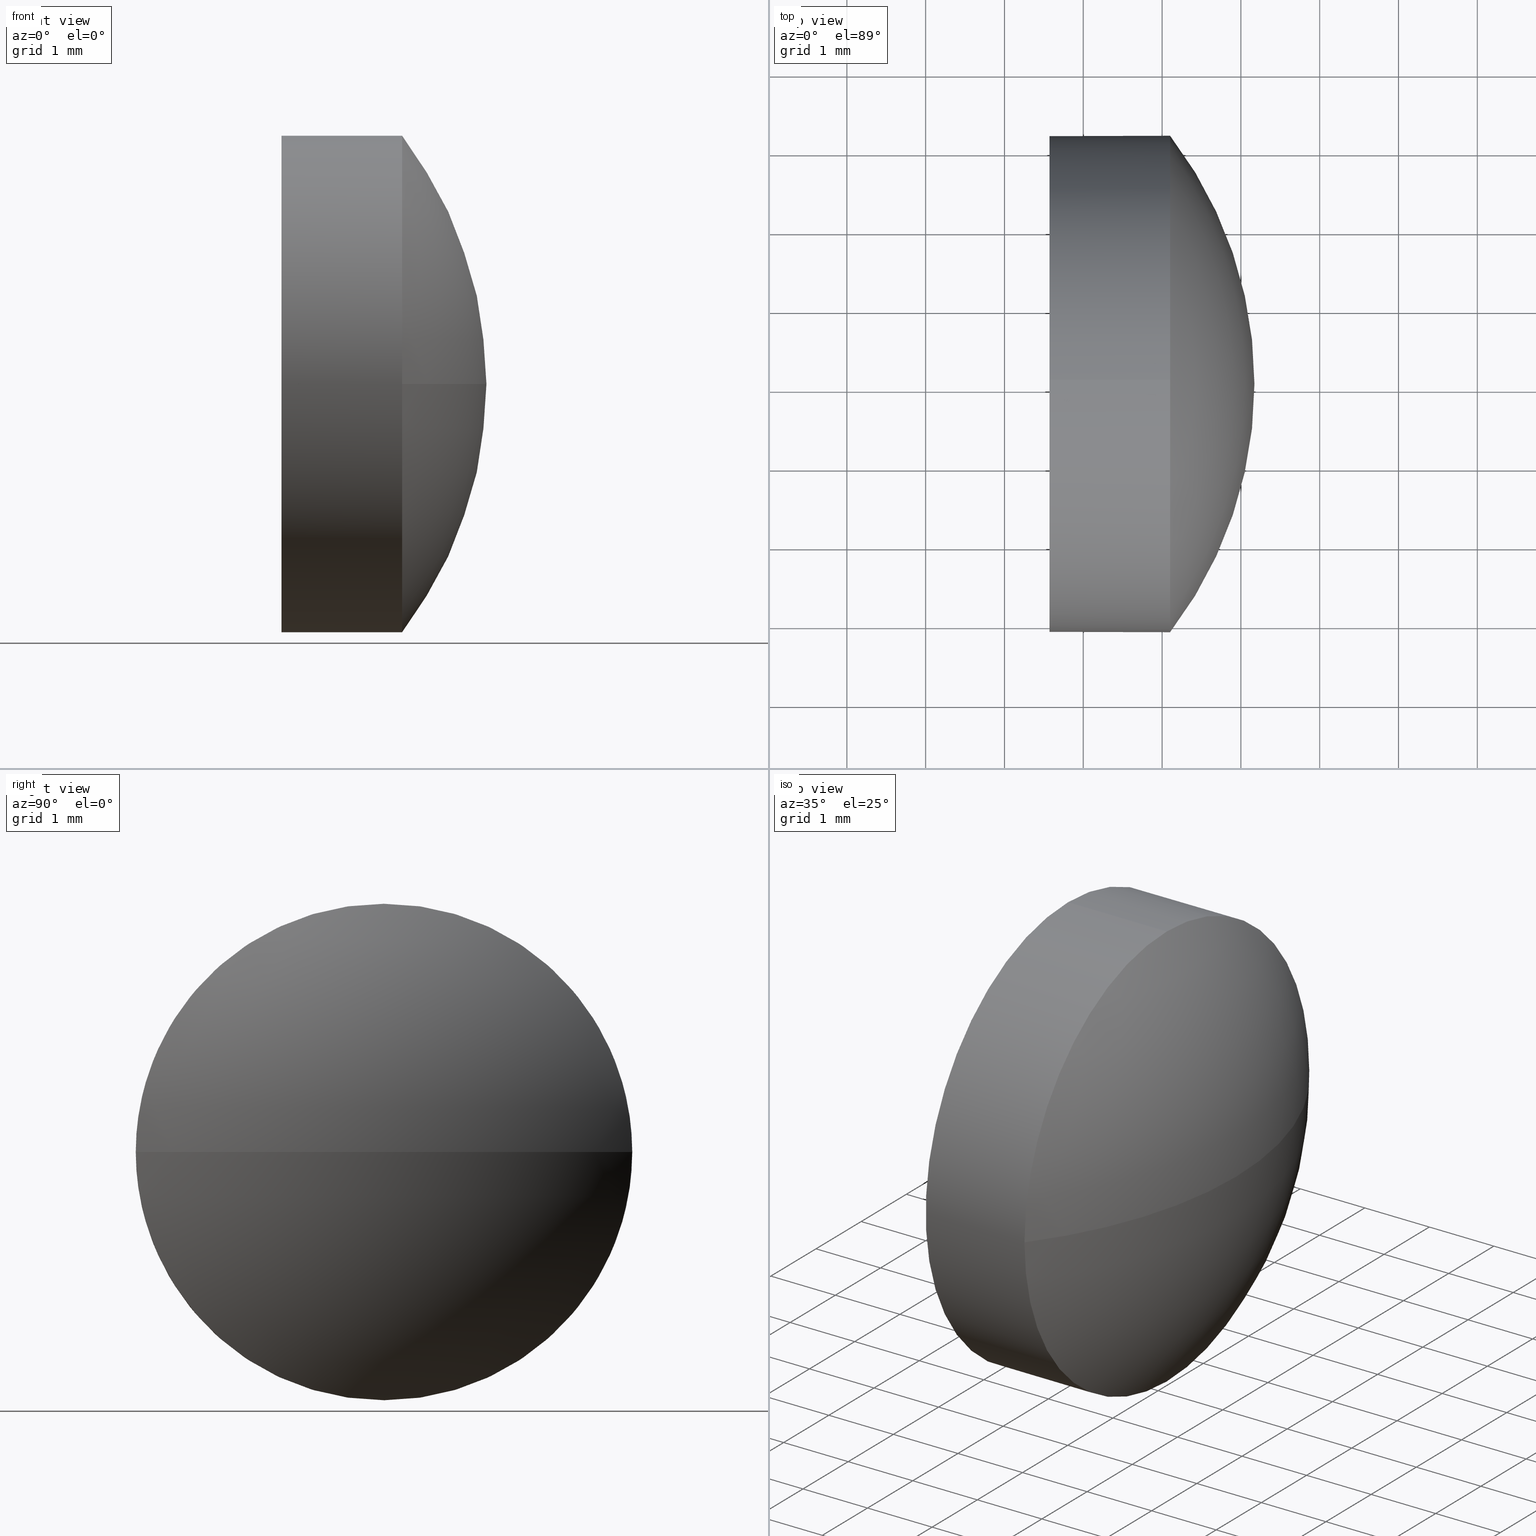
[diagram: canonical four-view strip — front | top / right | iso, engineering-drawing reading convention]
A machine part, canonical four-view strip (front | top / right | iso — engineering-drawing reading convention). The complete STEP part file that produces these views, byte-faithful:
ISO-10303-21;
HEADER;
FILE_DESCRIPTION (( 'STEP AP214' ),
    '1' );
FILE_NAME ('100093.STEP',
    '2019-05-13T05:28:27',
    ( '' ),
    ( '' ),
    'SwSTEP 2.0',
    'SolidWorks 2016',
    '' );
FILE_SCHEMA (( 'AUTOMOTIVE_DESIGN' ));
ENDSEC;

DATA;
#1 = EDGE_LOOP ( 'NONE', ( #40, #35, #152, #12 ) ) ;
#2 = DIRECTION ( 'NONE',  ( 1.000000000000000000, 0.0000000000000000000, 0.0000000000000000000 ) ) ;
#3 = DIRECTION ( 'NONE',  ( -1.000000000000000000, -0.0000000000000000000, -0.0000000000000000000 ) ) ;
#4 = FILL_AREA_STYLE_COLOUR ( '', #101 ) ;
#5 = ORIENTED_EDGE ( 'NONE', *, *, #133, .T. ) ;
#6 =( LENGTH_UNIT ( ) NAMED_UNIT ( * ) SI_UNIT ( .MILLI., .METRE. ) );
#7 =( GEOMETRIC_REPRESENTATION_CONTEXT ( 3 ) GLOBAL_UNCERTAINTY_ASSIGNED_CONTEXT ( ( #105 ) ) GLOBAL_UNIT_ASSIGNED_CONTEXT ( ( #162, #68, #172 ) ) REPRESENTATION_CONTEXT ( 'NONE', 'WORKASPACE' ) );
#8 = FACE_OUTER_BOUND ( 'NONE', #154, .T. ) ;
#9 = PRODUCT_DEFINITION ( 'δ֪', '', #45, #108 ) ;
#10 = CARTESIAN_POINT ( 'NONE',  ( 353.1020176784387000, 25.04791477200547300, 0.0000000000000000000 ) ) ;
#11 = CARTESIAN_POINT ( 'NONE',  ( 351.5720176784386700, 25.04791477200547300, 0.0000000000000000000 ) ) ;
#12 = ORIENTED_EDGE ( 'NONE', *, *, #72, .F. ) ;
#13 = CARTESIAN_POINT ( 'NONE',  ( 349.0003662362582900, 25.04791477200545200, 0.0000000000000000000 ) ) ;
#14 = PRODUCT_CONTEXT ( 'NONE', #74, 'mechanical' ) ;
#15 = DIRECTION ( 'NONE',  ( 1.000000000000000000, 0.0000000000000000000, 0.0000000000000000000 ) ) ;
#16 = CIRCLE ( 'NONE', #55, 3.149999999999996400 ) ;
#17 = DIRECTION ( 'NONE',  ( -1.000000000000000000, -0.0000000000000000000, -0.0000000000000000000 ) ) ;
#18 = PRESENTATION_LAYER_ASSIGNMENT (  '', '', ( #99 ) ) ;
#19 = ADVANCED_BREP_SHAPE_REPRESENTATION ( '100093', ( #142, #92 ), #171 ) ;
#20 =( LENGTH_UNIT ( ) NAMED_UNIT ( * ) SI_UNIT ( .MILLI., .METRE. ) );
#21 = SURFACE_STYLE_FILL_AREA ( #31 ) ;
#22 = CARTESIAN_POINT ( 'NONE',  ( 353.1020176784387000, 25.04791477200547300, 0.0000000000000000000 ) ) ;
#23 = UNCERTAINTY_MEASURE_WITH_UNIT (LENGTH_MEASURE( 1.000000000000000100E-005 ), #6, 'distance_accuracy_value', 'NONE');
#24 = VERTEX_POINT ( 'NONE', #51 ) ;
#25 = CARTESIAN_POINT ( 'NONE',  ( 354.1720240510349500, 25.04791477200545200, 0.0000000000000000000 ) ) ;
#26 = AXIS2_PLACEMENT_3D ( 'NONE', #169, #183, #146 ) ;
#27 = DIRECTION ( 'NONE',  ( 0.0000000000000000000, 0.0000000000000000000, 1.000000000000000000 ) ) ;
#28 = CIRCLE ( 'NONE', #117, 3.149999999999996400 ) ;
#29 = VERTEX_POINT ( 'NONE', #132 ) ;
#30 =( NAMED_UNIT ( * ) PLANE_ANGLE_UNIT ( ) SI_UNIT ( $, .RADIAN. ) );
#31 = FILL_AREA_STYLE ('',( #70 ) ) ;
#32 = VECTOR ( 'NONE', #131, 1000.000000000000000 ) ;
#33 = CARTESIAN_POINT ( 'NONE',  ( 0.0000000000000000000, 0.0000000000000000000, 0.0000000000000000000 ) ) ;
#34 = ORIENTED_EDGE ( 'NONE', *, *, #41, .T. ) ;
#35 = ORIENTED_EDGE ( 'NONE', *, *, #67, .T. ) ;
#36 = PRODUCT_RELATED_PRODUCT_CATEGORY ( 'part', '', ( #79 ) ) ;
#37 = ORIENTED_EDGE ( 'NONE', *, *, #168, .F. ) ;
#38 = CARTESIAN_POINT ( 'NONE',  ( 353.1020176784387000, 21.89791477200547100, -3.857637417314142000E-016 ) ) ;
#39 = DIRECTION ( 'NONE',  ( 0.0000000000000000000, 0.0000000000000000000, 1.000000000000000000 ) ) ;
#40 = ORIENTED_EDGE ( 'NONE', *, *, #161, .F. ) ;
#41 = EDGE_CURVE ( 'NONE', #91, #60, #64, .T. ) ;
#42 = ORIENTED_EDGE ( 'NONE', *, *, #125, .T. ) ;
#43 = FACE_OUTER_BOUND ( 'NONE', #175, .T. ) ;
#44 = APPLICATION_CONTEXT ( 'automotive_design' ) ;
#45 = PRODUCT_DEFINITION_FORMATION_WITH_SPECIFIED_SOURCE ( '�κ�', '', #79, .NOT_KNOWN. ) ;
#46 = FACE_OUTER_BOUND ( 'NONE', #139, .T. ) ;
#47 = ORIENTED_EDGE ( 'NONE', *, *, #48, .F. ) ;
#48 = EDGE_CURVE ( 'NONE', #170, #24, #16, .T. ) ;
#49 = CARTESIAN_POINT ( 'NONE',  ( 350.7103895088541800, 25.04791477200547300, -3.149999999999996400 ) ) ;
#50 = ORIENTED_EDGE ( 'NONE', *, *, #161, .T. ) ;
#51 = CARTESIAN_POINT ( 'NONE',  ( 351.5720176784386700, 25.04791477200547300, -3.149999999999996400 ) ) ;
#52 = DIRECTION ( 'NONE',  ( 0.0000000000000000000, 0.0000000000000000000, 1.000000000000000000 ) ) ;
#53 = ADVANCED_FACE ( 'NONE', ( #46 ), #78, .T. ) ;
#54 = PRESENTATION_STYLE_ASSIGNMENT (( #163 ) ) ;
#55 = AXIS2_PLACEMENT_3D ( 'NONE', #11, #80, #27 ) ;
#56 = EDGE_LOOP ( 'NONE', ( #182, #42, #34, #95, #76 ) ) ;
#57 = PLANE ( 'NONE',  #94 ) ;
#58 = DIRECTION ( 'NONE',  ( 0.0000000000000000000, 0.0000000000000000000, -1.000000000000000000 ) ) ;
#59 = DIRECTION ( 'NONE',  ( -0.0000000000000000000, 0.0000000000000000000, 1.000000000000000000 ) ) ;
#60 = VERTEX_POINT ( 'NONE', #65 ) ;
#61 = LINE ( 'NONE', #112, #81 ) ;
#62 = MECHANICAL_DESIGN_GEOMETRIC_PRESENTATION_REPRESENTATION (  '', ( #99 ), #143 ) ;
#63 = DIRECTION ( 'NONE',  ( -0.0000000000000000000, 0.0000000000000000000, -1.000000000000000000 ) ) ;
#64 = CIRCLE ( 'NONE', #111, 3.149999999999996400 ) ;
#65 = CARTESIAN_POINT ( 'NONE',  ( 353.1020176784387000, 25.04791477200547300, 3.149999999999996400 ) ) ;
#66 = ORIENTED_EDGE ( 'NONE', *, *, #67, .F. ) ;
#67 = EDGE_CURVE ( 'NONE', #128, #91, #167, .T. ) ;
#68 =( NAMED_UNIT ( * ) PLANE_ANGLE_UNIT ( ) SI_UNIT ( $, .RADIAN. ) );
#69 = ADVANCED_FACE ( 'NONE', ( #115 ), #73, .T. ) ;
#70 = FILL_AREA_STYLE_COLOUR ( '', #110 ) ;
#71 = DIRECTION ( 'NONE',  ( 0.0000000000000000000, 0.0000000000000000000, 1.000000000000000000 ) ) ;
#72 = EDGE_CURVE ( 'NONE', #29, #134, #123, .T. ) ;
#73 = SPHERICAL_SURFACE ( 'NONE', #26, 5.171657814776648500 ) ;
#74 = APPLICATION_CONTEXT ( 'automotive_design' ) ;
#75 = EDGE_CURVE ( 'NONE', #134, #24, #155, .T. ) ;
#76 = ORIENTED_EDGE ( 'NONE', *, *, #133, .F. ) ;
#77 = SHAPE_DEFINITION_REPRESENTATION ( #127, #19 ) ;
#78 = SPHERICAL_SURFACE ( 'NONE', #90, 5.171657814776648500 ) ;
#79 = PRODUCT ( '100093', '100093', '', ( #14 ) ) ;
#80 = DIRECTION ( 'NONE',  ( -1.000000000000000000, -0.0000000000000000000, -0.0000000000000000000 ) ) ;
#81 = VECTOR ( 'NONE', #3, 1000.000000000000000 ) ;
#82 = DIRECTION ( 'NONE',  ( -1.000000000000000000, -0.0000000000000000000, -0.0000000000000000000 ) ) ;
#83 = FACE_OUTER_BOUND ( 'NONE', #56, .T. ) ;
#84 = ORIENTED_EDGE ( 'NONE', *, *, #168, .T. ) ;
#85 = AXIS2_PLACEMENT_3D ( 'NONE', #144, #156, #114 ) ;
#86 = CARTESIAN_POINT ( 'NONE',  ( 350.7103895088541800, 25.04791477200547300, 0.0000000000000000000 ) ) ;
#87 = SURFACE_SIDE_STYLE ('',( #176 ) ) ;
#88 = DIRECTION ( 'NONE',  ( 0.0000000000000000000, 0.0000000000000000000, 1.000000000000000000 ) ) ;
#89 = DIRECTION ( 'NONE',  ( 1.000000000000000000, 0.0000000000000000000, 0.0000000000000000000 ) ) ;
#90 = AXIS2_PLACEMENT_3D ( 'NONE', #13, #63, #93 ) ;
#91 = VERTEX_POINT ( 'NONE', #38 ) ;
#92 = AXIS2_PLACEMENT_3D ( 'NONE', #33, #39, #15 ) ;
#93 = DIRECTION ( 'NONE',  ( 0.0000000000000000000, 1.000000000000000000, 0.0000000000000000000 ) ) ;
#94 = AXIS2_PLACEMENT_3D ( 'NONE', #140, #2, #58 ) ;
#95 = ORIENTED_EDGE ( 'NONE', *, *, #130, .T. ) ;
#96 = DIRECTION ( 'NONE',  ( 0.0000000000000000000, 0.0000000000000000000, 1.000000000000000000 ) ) ;
#97 = UNCERTAINTY_MEASURE_WITH_UNIT (LENGTH_MEASURE( 1.000000000000000100E-005 ), #20, 'distance_accuracy_value', 'NONE');
#98 = CYLINDRICAL_SURFACE ( 'NONE', #153, 3.149999999999996400 ) ;
#99 = STYLED_ITEM ( 'NONE', ( #113 ), #19 ) ;
#100 =( NAMED_UNIT ( * ) SI_UNIT ( $, .STERADIAN. ) SOLID_ANGLE_UNIT ( ) );
#101 = COLOUR_RGB ( '',1.000000000000000000, 1.000000000000000000, 1.000000000000000000 ) ;
#102 = CARTESIAN_POINT ( 'NONE',  ( 351.5720176784386700, 25.04791477200547300, 0.0000000000000000000 ) ) ;
#103 = CARTESIAN_POINT ( 'NONE',  ( 353.1020176784387000, 25.04791477200547300, 0.0000000000000000000 ) ) ;
#104 = AXIS2_PLACEMENT_3D ( 'NONE', #119, #137, #52 ) ;
#105 = UNCERTAINTY_MEASURE_WITH_UNIT (LENGTH_MEASURE( 1.000000000000000100E-005 ), #162, 'distance_accuracy_value', 'NONE');
#106 = FILL_AREA_STYLE ('',( #4 ) ) ;
#107 = CIRCLE ( 'NONE', #104, 3.149999999999996400 ) ;
#108 = PRODUCT_DEFINITION_CONTEXT ( 'detailed design', #44, 'design' ) ;
#109 = MECHANICAL_DESIGN_GEOMETRIC_PRESENTATION_REPRESENTATION (  '', ( #180 ), #7 ) ;
#110 = COLOUR_RGB ( '',1.000000000000000000, 1.000000000000000000, 1.000000000000000000 ) ;
#111 = AXIS2_PLACEMENT_3D ( 'NONE', #10, #82, #96 ) ;
#112 = CARTESIAN_POINT ( 'NONE',  ( 350.7103895088541800, 25.04791477200547300, 3.149999999999996400 ) ) ;
#113 = PRESENTATION_STYLE_ASSIGNMENT (( #120 ) ) ;
#114 = DIRECTION ( 'NONE',  ( 0.0000000000000000000, 1.000000000000000000, 1.224646799147353200E-016 ) ) ;
#115 = FACE_OUTER_BOUND ( 'NONE', #1, .T. ) ;
#116 = ORIENTED_EDGE ( 'NONE', *, *, #75, .T. ) ;
#117 = AXIS2_PLACEMENT_3D ( 'NONE', #102, #17, #164 ) ;
#118 = CYLINDRICAL_SURFACE ( 'NONE', #121, 3.149999999999996400 ) ;
#119 = CARTESIAN_POINT ( 'NONE',  ( 353.1020176784387000, 25.04791477200547300, 0.0000000000000000000 ) ) ;
#120 = SURFACE_STYLE_USAGE ( .BOTH. , #87 ) ;
#121 = AXIS2_PLACEMENT_3D ( 'NONE', #86, #124, #141 ) ;
#122 = SURFACE_SIDE_STYLE ('',( #21 ) ) ;
#123 = CIRCLE ( 'NONE', #159, 3.149999999999996400 ) ;
#124 = DIRECTION ( 'NONE',  ( -1.000000000000000000, -0.0000000000000000000, -0.0000000000000000000 ) ) ;
#125 = EDGE_CURVE ( 'NONE', #134, #91, #107, .T. ) ;
#126 = CIRCLE ( 'NONE', #151, 5.171657814776631700 ) ;
#127 = PRODUCT_DEFINITION_SHAPE ( 'NONE', 'NONE',  #9 ) ;
#128 = VERTEX_POINT ( 'NONE', #25 ) ;
#129 = DIRECTION ( 'NONE',  ( -1.000000000000000000, -0.0000000000000000000, -0.0000000000000000000 ) ) ;
#130 = EDGE_CURVE ( 'NONE', #60, #170, #61, .T. ) ;
#131 = DIRECTION ( 'NONE',  ( -1.000000000000000000, -0.0000000000000000000, -0.0000000000000000000 ) ) ;
#132 = CARTESIAN_POINT ( 'NONE',  ( 353.1020176784387000, 28.19791477200545800, 0.0000000000000000000 ) ) ;
#133 = EDGE_CURVE ( 'NONE', #24, #170, #28, .T. ) ;
#134 = VERTEX_POINT ( 'NONE', #177 ) ;
#135 = PRESENTATION_LAYER_ASSIGNMENT (  '', '', ( #180 ) ) ;
#136 = ADVANCED_FACE ( 'NONE', ( #8 ), #98, .T. ) ;
#137 = DIRECTION ( 'NONE',  ( -1.000000000000000000, -0.0000000000000000000, -0.0000000000000000000 ) ) ;
#138 =( NAMED_UNIT ( * ) SI_UNIT ( $, .STERADIAN. ) SOLID_ANGLE_UNIT ( ) );
#139 = EDGE_LOOP ( 'NONE', ( #66, #50, #37, #184 ) ) ;
#140 = CARTESIAN_POINT ( 'NONE',  ( 351.5720176784386700, 25.04791477200547300, 0.0000000000000000000 ) ) ;
#141 = DIRECTION ( 'NONE',  ( 0.0000000000000000000, 0.0000000000000000000, 1.000000000000000000 ) ) ;
#142 = MANIFOLD_SOLID_BREP ( '��ת1', #185 ) ;
#143 =( GEOMETRIC_REPRESENTATION_CONTEXT ( 3 ) GLOBAL_UNCERTAINTY_ASSIGNED_CONTEXT ( ( #97 ) ) GLOBAL_UNIT_ASSIGNED_CONTEXT ( ( #20, #30, #138 ) ) REPRESENTATION_CONTEXT ( 'NONE', 'WORKASPACE' ) );
#144 = CARTESIAN_POINT ( 'NONE',  ( 349.0003662362582900, 25.04791477200545200, 0.0000000000000000000 ) ) ;
#145 = DIRECTION ( 'NONE',  ( 0.0000000000000000000, 0.0000000000000000000, 1.000000000000000000 ) ) ;
#146 = DIRECTION ( 'NONE',  ( 0.0000000000000000000, 1.000000000000000000, 0.0000000000000000000 ) ) ;
#147 = CARTESIAN_POINT ( 'NONE',  ( 350.7103895088541800, 25.04791477200547300, 0.0000000000000000000 ) ) ;
#148 = APPLICATION_PROTOCOL_DEFINITION ( 'draft international standard', 'automotive_design', 1998, #74 ) ;
#149 = CIRCLE ( 'NONE', #186, 3.149999999999996400 ) ;
#150 = APPLICATION_PROTOCOL_DEFINITION ( 'draft international standard', 'automotive_design', 1998, #44 ) ;
#151 = AXIS2_PLACEMENT_3D ( 'NONE', #179, #59, #89 ) ;
#152 = ORIENTED_EDGE ( 'NONE', *, *, #125, .F. ) ;
#153 = AXIS2_PLACEMENT_3D ( 'NONE', #147, #158, #88 ) ;
#154 = EDGE_LOOP ( 'NONE', ( #181, #116, #47, #165, #84 ) ) ;
#155 = LINE ( 'NONE', #49, #32 ) ;
#156 = DIRECTION ( 'NONE',  ( 0.0000000000000000000, 1.224646799147353200E-016, -1.000000000000000000 ) ) ;
#157 = ORIENTED_EDGE ( 'NONE', *, *, #48, .T. ) ;
#158 = DIRECTION ( 'NONE',  ( -1.000000000000000000, -0.0000000000000000000, -0.0000000000000000000 ) ) ;
#159 = AXIS2_PLACEMENT_3D ( 'NONE', #22, #129, #145 ) ;
#160 = ADVANCED_FACE ( 'NONE', ( #83 ), #118, .T. ) ;
#161 = EDGE_CURVE ( 'NONE', #128, #29, #126, .T. ) ;
#162 =( LENGTH_UNIT ( ) NAMED_UNIT ( * ) SI_UNIT ( .MILLI., .METRE. ) );
#163 = SURFACE_STYLE_USAGE ( .BOTH. , #122 ) ;
#164 = DIRECTION ( 'NONE',  ( 0.0000000000000000000, 0.0000000000000000000, 1.000000000000000000 ) ) ;
#165 = ORIENTED_EDGE ( 'NONE', *, *, #130, .F. ) ;
#166 = DIRECTION ( 'NONE',  ( -1.000000000000000000, -0.0000000000000000000, -0.0000000000000000000 ) ) ;
#167 = CIRCLE ( 'NONE', #85, 5.171657814776648500 ) ;
#168 = EDGE_CURVE ( 'NONE', #60, #29, #149, .T. ) ;
#169 = CARTESIAN_POINT ( 'NONE',  ( 349.0003662362582900, 25.04791477200545200, 0.0000000000000000000 ) ) ;
#170 = VERTEX_POINT ( 'NONE', #178 ) ;
#171 =( GEOMETRIC_REPRESENTATION_CONTEXT ( 3 ) GLOBAL_UNCERTAINTY_ASSIGNED_CONTEXT ( ( #23 ) ) GLOBAL_UNIT_ASSIGNED_CONTEXT ( ( #6, #174, #100 ) ) REPRESENTATION_CONTEXT ( 'NONE', 'WORKASPACE' ) );
#172 =( NAMED_UNIT ( * ) SI_UNIT ( $, .STERADIAN. ) SOLID_ANGLE_UNIT ( ) );
#173 = ADVANCED_FACE ( 'NONE', ( #43 ), #57, .F. ) ;
#174 =( NAMED_UNIT ( * ) PLANE_ANGLE_UNIT ( ) SI_UNIT ( $, .RADIAN. ) );
#175 = EDGE_LOOP ( 'NONE', ( #157, #5 ) ) ;
#176 = SURFACE_STYLE_FILL_AREA ( #106 ) ;
#177 = CARTESIAN_POINT ( 'NONE',  ( 353.1020176784387000, 25.04791477200547300, -3.149999999999996400 ) ) ;
#178 = CARTESIAN_POINT ( 'NONE',  ( 351.5720176784386700, 25.04791477200547300, 3.149999999999996400 ) ) ;
#179 = CARTESIAN_POINT ( 'NONE',  ( 349.0003662362582900, 25.04791477200545200, 0.0000000000000000000 ) ) ;
#180 = STYLED_ITEM ( 'NONE', ( #54 ), #142 ) ;
#181 = ORIENTED_EDGE ( 'NONE', *, *, #72, .T. ) ;
#182 = ORIENTED_EDGE ( 'NONE', *, *, #75, .F. ) ;
#183 = DIRECTION ( 'NONE',  ( -0.0000000000000000000, 0.0000000000000000000, -1.000000000000000000 ) ) ;
#184 = ORIENTED_EDGE ( 'NONE', *, *, #41, .F. ) ;
#185 = CLOSED_SHELL ( 'NONE', ( #136, #69, #53, #160, #173 ) ) ;
#186 = AXIS2_PLACEMENT_3D ( 'NONE', #103, #166, #71 ) ;
ENDSEC;
END-ISO-10303-21;
